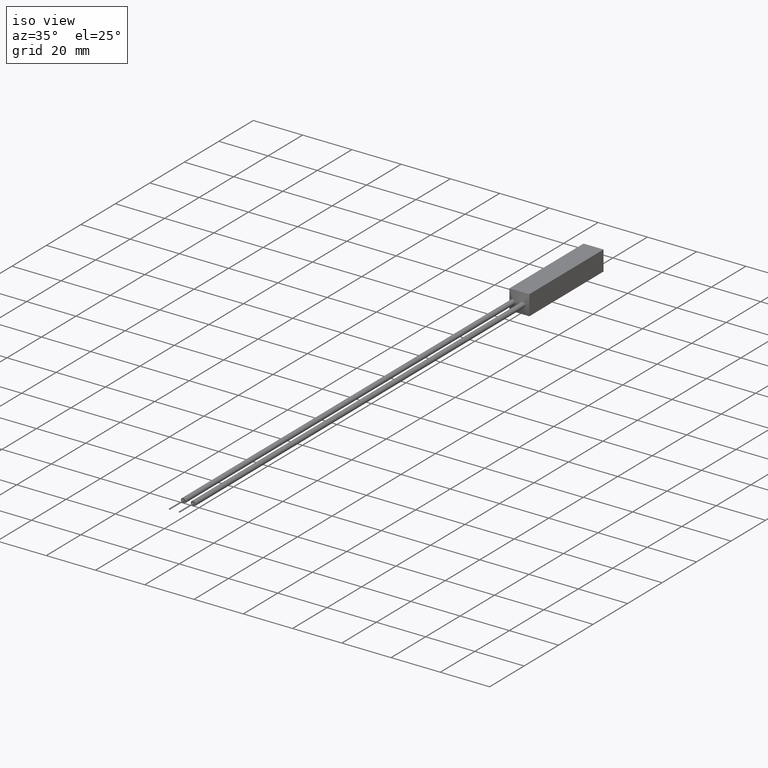
[diagram: clean part render]
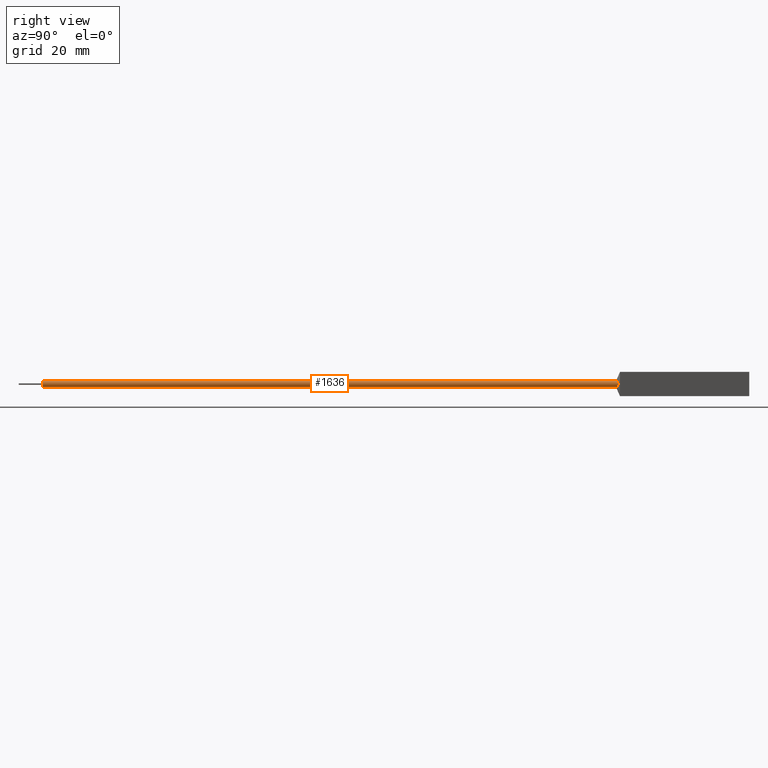
[diagram: tour spotlight — one face highlighted and labeled with its STEP entity id]
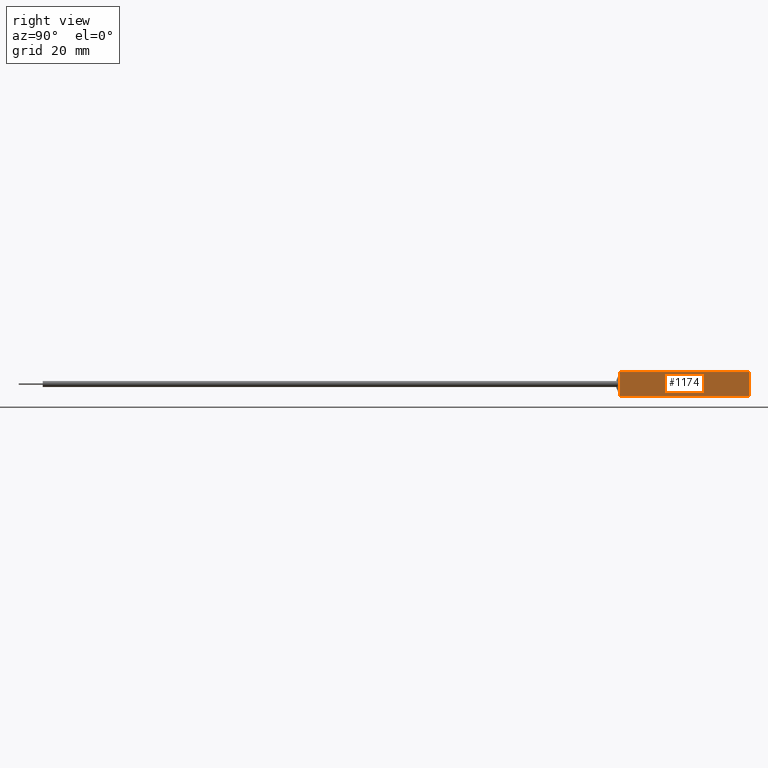
[diagram: tour spotlight — one face highlighted and labeled with its STEP entity id]
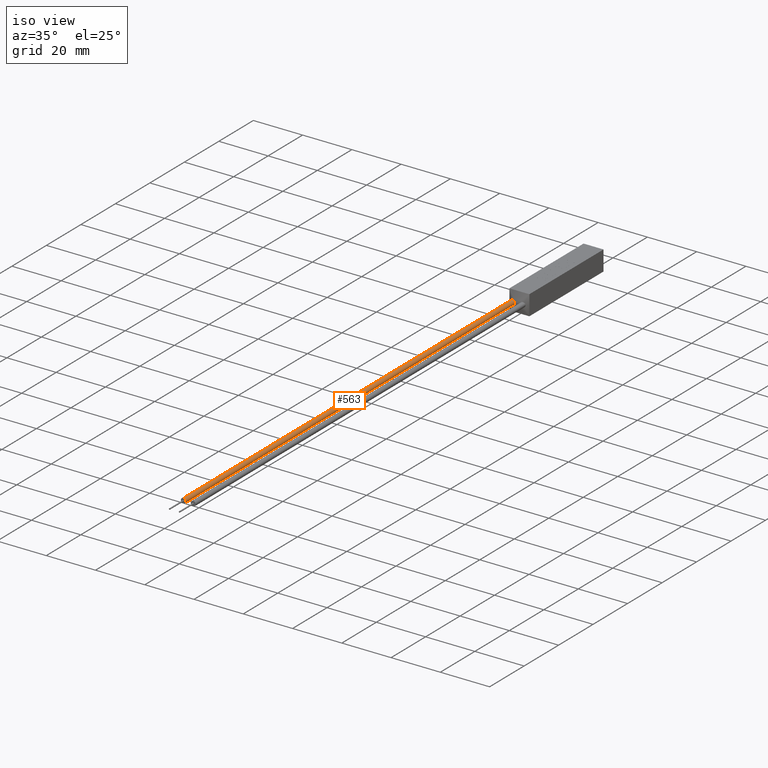
[diagram: tour spotlight — one face highlighted and labeled with its STEP entity id]
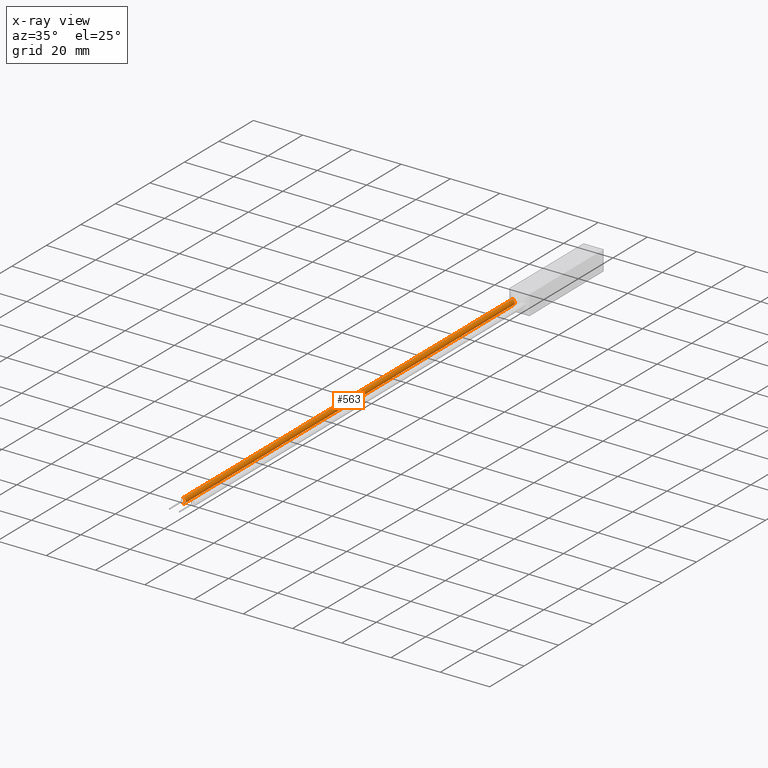
[diagram: x-ray of the same camera — body ghosted, this tour face saturated]
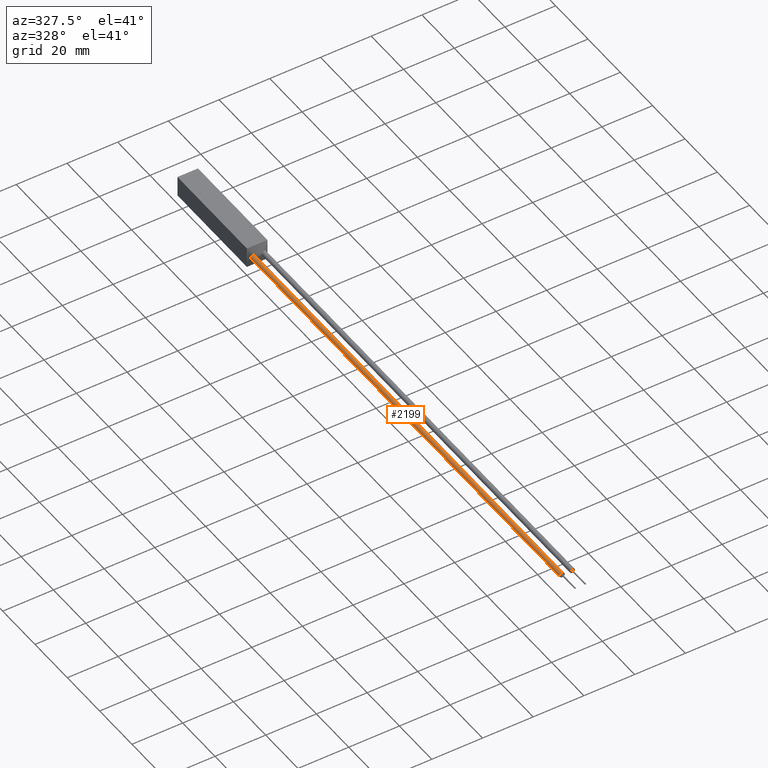
[diagram: tour spotlight — one face highlighted and labeled with its STEP entity id]
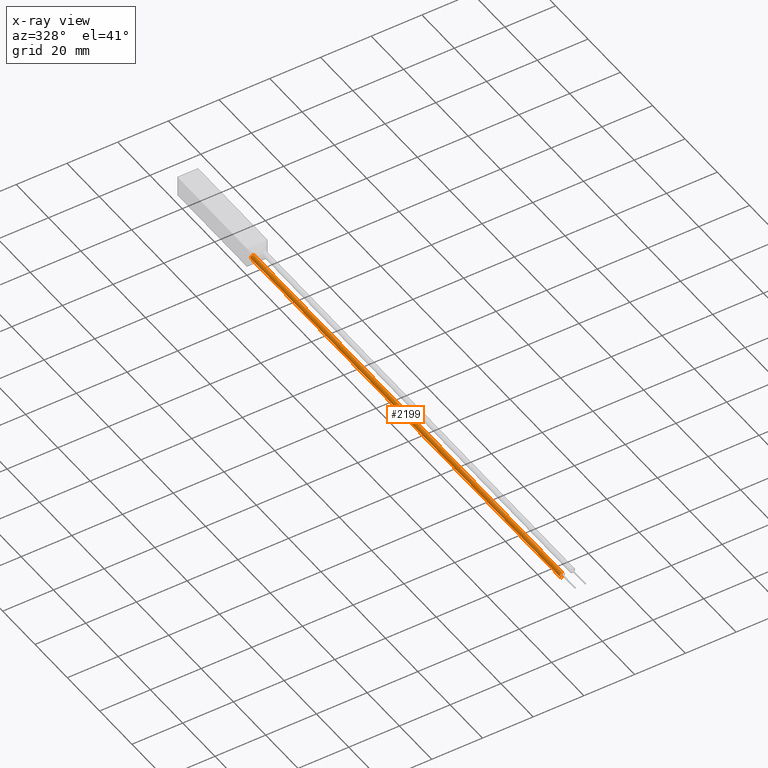
[diagram: x-ray of the same camera — body ghosted, this tour face saturated]
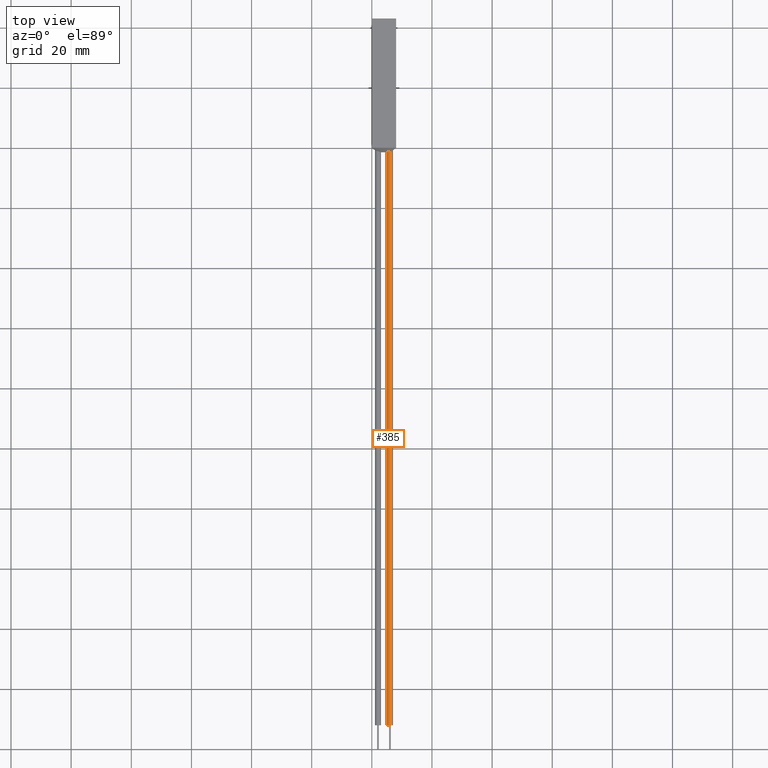
[diagram: tour spotlight — one face highlighted and labeled with its STEP entity id]
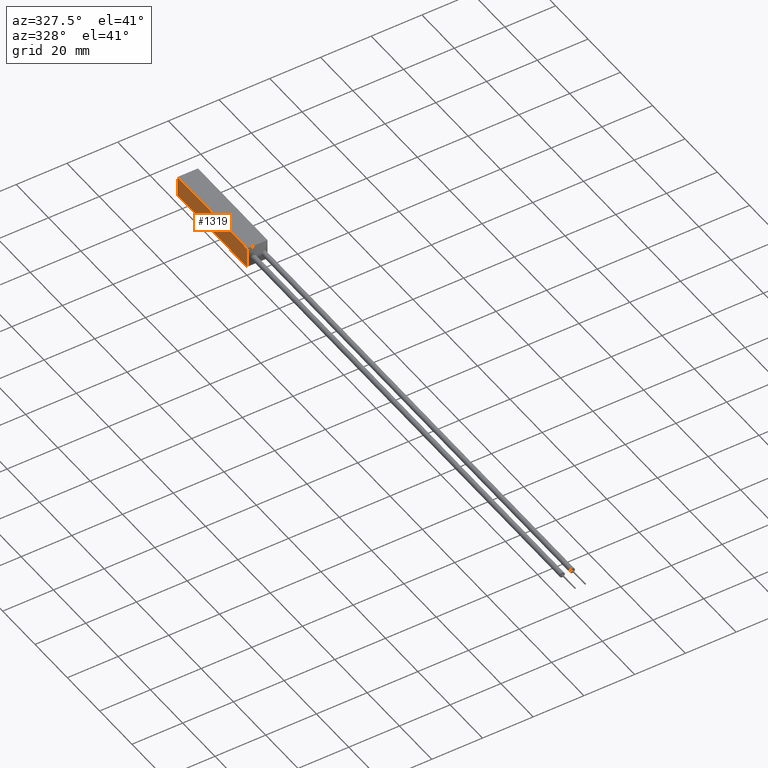
[diagram: tour spotlight — one face highlighted and labeled with its STEP entity id]
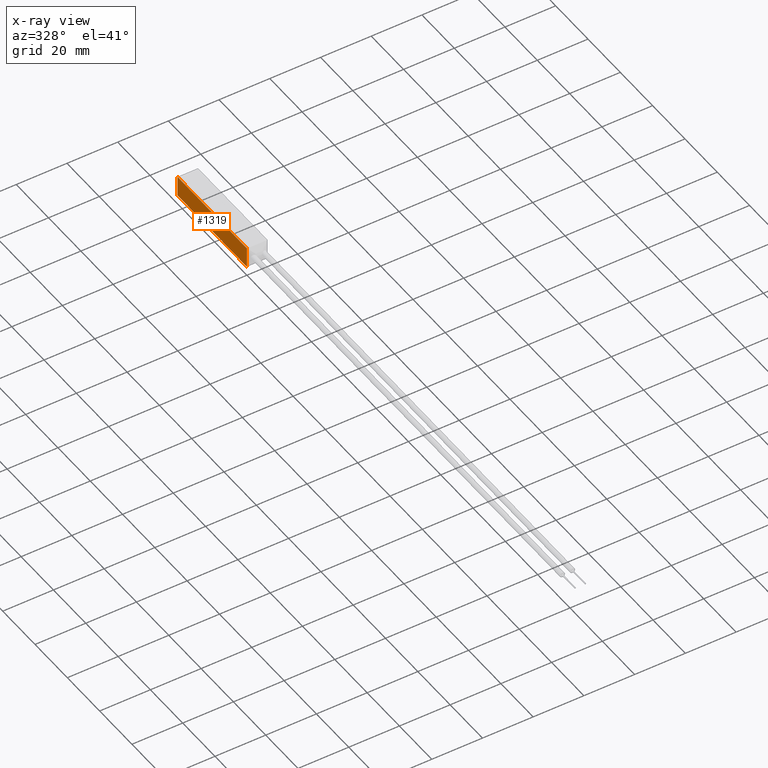
[diagram: x-ray of the same camera — body ghosted, this tour face saturated]
A machine part: a face-by-face anatomy tour. The part has 72 B-rep faces; the first image is the clean iso view, then the 6 largest visible faces are spotlighted one at a time (largest first), each with its STEP entity span.

Face 1 — right view, entity #1636. In plain terms, the highlighted cylindrical surface (edge-blend (fillet) strip) has radius 1 mm, axis along (0, 1, 0).
Definition (entity closure, byte-faithful):
#30 = CARTESIAN_POINT ( 'NONE',  ( 6.050000000000000700, -192.0000000000000000, 5.049999999999999800 ) ) ;
#33 = CARTESIAN_POINT ( 'NONE',  ( 6.050000000000000700, -192.0000000000000000, 3.049999999999999800 ) ) ;
#39 = LINE ( 'NONE', #1361, #2085 ) ;
#101 = CARTESIAN_POINT ( 'NONE',  ( 7.049782589688057000, -0.6770560791256917700, 4.186461195971296500 ) ) ;
#291 = CARTESIAN_POINT ( 'NONE',  ( 6.841326999528730500, -0.7702589457902280200, 3.424726608322665700 ) ) ;
#301 = VERTEX_POINT ( 'NONE', #1633 ) ;
#312 = CARTESIAN_POINT ( 'NONE',  ( 6.050000000000001600, -1.065053979372785800, 5.049999999999998900 ) ) ;
#316 = DIRECTION ( 'NONE',  ( 0.0000000000000000000, 0.0000000000000000000, 1.000000000000000000 ) ) ;
#323 = VECTOR ( 'NONE', #420, 1000.000000000000000 ) ;
#397 = EDGE_CURVE ( 'NONE', #301, #1147, #1093, .T. ) ;
#420 = DIRECTION ( 'NONE',  ( 0.0000000000000000000, 1.000000000000000000, 0.0000000000000000000 ) ) ;
#478 = LINE ( 'NONE', #30, #323 ) ;
#504 = CARTESIAN_POINT ( 'NONE',  ( 6.050000000000000700, -192.0000000000000000, 4.049999999999999800 ) ) ;
#508 = CARTESIAN_POINT ( 'NONE',  ( 6.917570883144287000, -0.7370218707046806200, 3.535058087261215000 ) ) ;
#509 = AXIS2_PLACEMENT_3D ( 'NONE', #2258, #870, #906 ) ;
#668 = EDGE_LOOP ( 'NONE', ( #910, #725, #922, #1110 ) ) ;
#669 = VERTEX_POINT ( 'NONE', #1419 ) ;
#707 = CARTESIAN_POINT ( 'NONE',  ( 6.840157868382039700, -0.7707441501522263000, 4.676572079334665200 ) ) ;
#725 = ORIENTED_EDGE ( 'NONE', *, *, #1757, .T. ) ;
#747 = EDGE_CURVE ( 'NONE', #669, #301, #478, .T. ) ;
#836 = AXIS2_PLACEMENT_3D ( 'NONE', #504, #2111, #316 ) ;
#870 = DIRECTION ( 'NONE',  ( 0.0000000000000000000, 1.000000000000000000, 0.0000000000000000000 ) ) ;
#906 = DIRECTION ( 'NONE',  ( 0.0000000000000000000, 0.0000000000000000000, 1.000000000000000000 ) ) ;
#910 = ORIENTED_EDGE ( 'NONE', *, *, #944, .T. ) ;
#922 = ORIENTED_EDGE ( 'NONE', *, *, #397, .F. ) ;
#944 = EDGE_CURVE ( 'NONE', #669, #2169, #2333, .T. ) ;
#1064 = CYLINDRICAL_SURFACE ( 'NONE', #509, 1.000000000000000000 ) ;
#1077 = CARTESIAN_POINT ( 'NONE',  ( 6.305326782835059000, -0.9764772968358933500, 5.025403556639865600 ) ) ;
#1093 = B_SPLINE_CURVE_WITH_KNOTS ( 'NONE', 3,
 ( #312, #1308, #1077, #1473, #2268, #707, #2294, #2468, #101, #1480, #2091, #508, #291, #1871, #1105, #2276, #1097, #2485 ),
 .UNSPECIFIED., .F., .F.,
 ( 4, 2, 2, 2, 2, 2, 2, 2, 4 ),
 ( 0.0000000000000000000, 0.0004042052628111356300, 0.0008084105256222712600, 0.001212615788433406900, 0.001616821051244542500, 0.002021026314055678200, 0.002425231576866813800, 0.002829436839677949400, 0.003233642102489085000 ),
 .UNSPECIFIED. ) ;
#1097 = CARTESIAN_POINT ( 'NONE',  ( 6.177735831026676100, -1.021177162555706500, 3.050000000000000700 ) ) ;
#1105 = CARTESIAN_POINT ( 'NONE',  ( 6.543797944979557400, -0.8890515064474700000, 3.171011300730333100 ) ) ;
#1110 = ORIENTED_EDGE ( 'NONE', *, *, #747, .F. ) ;
#1147 = VERTEX_POINT ( 'NONE', #2388 ) ;
#1308 = CARTESIAN_POINT ( 'NONE',  ( 6.179254083786952700, -1.020655647975897900, 5.049999999999999800 ) ) ;
#1361 = CARTESIAN_POINT ( 'NONE',  ( 6.050000000000000700, -192.0000000000000000, 3.049999999999999800 ) ) ;
#1419 = CARTESIAN_POINT ( 'NONE',  ( 6.050000000000000700, -192.0000000000000000, 5.049999999999999800 ) ) ;
#1473 = CARTESIAN_POINT ( 'NONE',  ( 6.544254013090356800, -0.8888851433313323900, 4.928815586390385300 ) ) ;
#1480 = CARTESIAN_POINT ( 'NONE',  ( 7.050214841948257300, -0.6768545831474318500, 3.916744026041242100 ) ) ;
#1633 = CARTESIAN_POINT ( 'NONE',  ( 6.050000000000001600, -1.065053979372785800, 5.049999999999998900 ) ) ;
#1636 = ADVANCED_FACE ( 'NONE', ( #1860 ), #1064, .T. ) ;
#1757 = EDGE_CURVE ( 'NONE', #2169, #1147, #39, .T. ) ;
#1860 = FACE_OUTER_BOUND ( 'NONE', #668, .T. ) ;
#1871 = CARTESIAN_POINT ( 'NONE',  ( 6.653541908507581800, -0.8466754272493877100, 3.241976238469532300 ) ) ;
#1923 = DIRECTION ( 'NONE',  ( 0.0000000000000000000, 1.000000000000000000, 0.0000000000000000000 ) ) ;
#2085 = VECTOR ( 'NONE', #1923, 1000.000000000000000 ) ;
#2091 = CARTESIAN_POINT ( 'NONE',  ( 7.022314162250524700, -0.6900703251390806200, 3.780835402287200600 ) ) ;
#2111 = DIRECTION ( 'NONE',  ( 0.0000000000000000000, 1.000000000000000000, 0.0000000000000000000 ) ) ;
#2169 = VERTEX_POINT ( 'NONE', #33 ) ;
#2258 = CARTESIAN_POINT ( 'NONE',  ( 6.050000000000000700, -192.0000000000000000, 4.049999999999999800 ) ) ;
#2268 = CARTESIAN_POINT ( 'NONE',  ( 6.653436377551267700, -0.8467088638716882000, 4.857964458262625100 ) ) ;
#2276 = CARTESIAN_POINT ( 'NONE',  ( 6.305933629804219900, -0.9762556567586948600, 3.074830516758727300 ) ) ;
#2294 = CARTESIAN_POINT ( 'NONE',  ( 6.916508368777208200, -0.7374871264375227900, 4.566584119798712900 ) ) ;
#2333 = CIRCLE ( 'NONE', #836, 1.000000000000000000 ) ;
#2388 = CARTESIAN_POINT ( 'NONE',  ( 6.050000000000003400, -1.065053979372784200, 3.050000000000000700 ) ) ;
#2468 = CARTESIAN_POINT ( 'NONE',  ( 7.021422709933898600, -0.6904807384991236100, 4.322091573948600100 ) ) ;
#2485 = CARTESIAN_POINT ( 'NONE',  ( 6.050000000000003400, -1.065053979372784200, 3.050000000000000700 ) ) ;

Face 2 — right view, entity #1174. In plain terms, the highlighted planar face has unit normal (-1, 0, 0).
Definition (entity closure, byte-faithful):
#26 = PLANE ( 'NONE',  #1062 ) ;
#152 = ORIENTED_EDGE ( 'NONE', *, *, #2498, .T. ) ;
#162 = DIRECTION ( 'NONE',  ( -0.0000000000000000000, -0.0000000000000000000, -1.000000000000000000 ) ) ;
#228 = CARTESIAN_POINT ( 'NONE',  ( 8.099999999999999600, 43.00000000000000000, 8.099999999999999600 ) ) ;
#404 = CARTESIAN_POINT ( 'NONE',  ( 8.099999999999999600, 43.00000000000000000, 8.099999999999999600 ) ) ;
#409 = DIRECTION ( 'NONE',  ( -1.000000000000000000, 0.0000000000000000000, 0.0000000000000000000 ) ) ;
#472 = LINE ( 'NONE', #228, #2492 ) ;
#536 = EDGE_CURVE ( 'NONE', #1336, #2442, #2497, .T. ) ;
#611 = DIRECTION ( 'NONE',  ( 0.0000000000000000000, 1.000000000000000000, 0.0000000000000000000 ) ) ;
#745 = CARTESIAN_POINT ( 'NONE',  ( 8.099999999999999600, 0.0000000000000000000, 8.099999999999999600 ) ) ;
#790 = CARTESIAN_POINT ( 'NONE',  ( 8.099999999999999600, 43.00000000000000000, 0.0000000000000000000 ) ) ;
#1062 = AXIS2_PLACEMENT_3D ( 'NONE', #1817, #409, #2212 ) ;
#1131 = FACE_OUTER_BOUND ( 'NONE', #1872, .T. ) ;
#1142 = EDGE_CURVE ( 'NONE', #2442, #2501, #472, .T. ) ;
#1174 = ADVANCED_FACE ( 'NONE', ( #1131 ), #26, .F. ) ;
#1333 = DIRECTION ( 'NONE',  ( 0.0000000000000000000, 1.000000000000000000, 0.0000000000000000000 ) ) ;
#1336 = VERTEX_POINT ( 'NONE', #1484 ) ;
#1340 = CARTESIAN_POINT ( 'NONE',  ( 8.099999999999999600, 0.0000000000000000000, 8.099999999999999600 ) ) ;
#1484 = CARTESIAN_POINT ( 'NONE',  ( 8.099999999999999600, 0.0000000000000000000, 8.099999999999999600 ) ) ;
#1493 = CARTESIAN_POINT ( 'NONE',  ( 8.099999999999999600, 0.0000000000000000000, 0.0000000000000000000 ) ) ;
#1599 = ORIENTED_EDGE ( 'NONE', *, *, #1827, .T. ) ;
#1666 = VERTEX_POINT ( 'NONE', #1493 ) ;
#1791 = CARTESIAN_POINT ( 'NONE',  ( 8.099999999999999600, 0.0000000000000000000, 0.0000000000000000000 ) ) ;
#1817 = CARTESIAN_POINT ( 'NONE',  ( 8.099999999999999600, 0.0000000000000000000, 8.099999999999999600 ) ) ;
#1827 = EDGE_CURVE ( 'NONE', #1336, #1666, #1857, .T. ) ;
#1836 = VECTOR ( 'NONE', #1333, 1000.000000000000000 ) ;
#1857 = LINE ( 'NONE', #1340, #1946 ) ;
#1872 = EDGE_LOOP ( 'NONE', ( #152, #2544, #2413, #1599 ) ) ;
#1946 = VECTOR ( 'NONE', #162, 1000.000000000000000 ) ;
#2008 = DIRECTION ( 'NONE',  ( -0.0000000000000000000, -0.0000000000000000000, -1.000000000000000000 ) ) ;
#2212 = DIRECTION ( 'NONE',  ( 0.0000000000000000000, 0.0000000000000000000, 1.000000000000000000 ) ) ;
#2413 = ORIENTED_EDGE ( 'NONE', *, *, #536, .F. ) ;
#2442 = VERTEX_POINT ( 'NONE', #404 ) ;
#2477 = VECTOR ( 'NONE', #611, 1000.000000000000000 ) ;
#2492 = VECTOR ( 'NONE', #2008, 1000.000000000000000 ) ;
#2497 = LINE ( 'NONE', #745, #1836 ) ;
#2498 = EDGE_CURVE ( 'NONE', #1666, #2501, #2541, .T. ) ;
#2501 = VERTEX_POINT ( 'NONE', #790 ) ;
#2541 = LINE ( 'NONE', #1791, #2477 ) ;
#2544 = ORIENTED_EDGE ( 'NONE', *, *, #1142, .F. ) ;

Face 3 — iso view, entity #563. An x-ray twin of the same camera follows (body ghosted, this face saturated) — the face is partly hidden behind the body. In plain terms, the highlighted cylindrical surface (edge-blend (fillet) strip) has radius 1 mm, axis along (0, 1, 0).
Definition (entity closure, byte-faithful):
#1 = CARTESIAN_POINT ( 'NONE',  ( 2.304380462756219200, -1.151667494371806800, 5.025667091620696200 ) ) ;
#193 = CARTESIAN_POINT ( 'NONE',  ( 2.653466689436920300, -1.270299211996313000, 4.858036608084524300 ) ) ;
#263 = ORIENTED_EDGE ( 'NONE', *, *, #1074, .F. ) ;
#334 = DIRECTION ( 'NONE',  ( 0.0000000000000000000, 1.000000000000000000, 0.0000000000000000000 ) ) ;
#373 = CARTESIAN_POINT ( 'NONE',  ( 2.050000000000000300, -192.0000000000000000, 5.049999999999999800 ) ) ;
#376 = CYLINDRICAL_SURFACE ( 'NONE', #1209, 1.000000000000000000 ) ;
#408 = CARTESIAN_POINT ( 'NONE',  ( 2.050000000000000300, -192.0000000000000000, 3.049999999999999800 ) ) ;
#480 = CARTESIAN_POINT ( 'NONE',  ( 2.050000000000000300, -192.0000000000000000, 3.049999999999999800 ) ) ;
#563 = ADVANCED_FACE ( 'NONE', ( #2061 ), #376, .T. ) ;
#613 = CARTESIAN_POINT ( 'NONE',  ( 2.049999999999999800, -1.065053979372785800, 5.050000000000000700 ) ) ;
#653 = LINE ( 'NONE', #480, #1317 ) ;
#680 = VERTEX_POINT ( 'NONE', #2390 ) ;
#687 = CARTESIAN_POINT ( 'NONE',  ( 2.050000000000000300, -192.0000000000000000, 5.049999999999999800 ) ) ;
#699 = ORIENTED_EDGE ( 'NONE', *, *, #1516, .T. ) ;
#773 = CARTESIAN_POINT ( 'NONE',  ( 3.049830824381978700, -1.408490528176045800, 4.185286913239761700 ) ) ;
#783 = CARTESIAN_POINT ( 'NONE',  ( 3.022634062902957100, -1.398812703780552200, 3.782075709399126000 ) ) ;
#931 = CARTESIAN_POINT ( 'NONE',  ( 2.840928581346762200, -1.334999254075950100, 4.675721331323695800 ) ) ;
#1074 = EDGE_CURVE ( 'NONE', #1873, #680, #1362, .T. ) ;
#1144 = CARTESIAN_POINT ( 'NONE',  ( 2.918371333244694600, -1.362112318841773600, 3.536451878192582200 ) ) ;
#1182 = CARTESIAN_POINT ( 'NONE',  ( 3.050167597258706100, -1.408609963732183600, 3.917225741681461800 ) ) ;
#1192 = CARTESIAN_POINT ( 'NONE',  ( 2.176964197843394900, -1.108665742856175000, 3.049999999998977100 ) ) ;
#1194 = AXIS2_PLACEMENT_3D ( 'NONE', #1705, #2488, #1687 ) ;
#1209 = AXIS2_PLACEMENT_3D ( 'NONE', #1709, #334, #2176 ) ;
#1317 = VECTOR ( 'NONE', #1674, 1000.000000000000000 ) ;
#1328 = EDGE_LOOP ( 'NONE', ( #2154, #699, #263, #2343 ) ) ;
#1347 = CARTESIAN_POINT ( 'NONE',  ( 2.917487754181418600, -1.361802718651389900, 4.564914758102677400 ) ) ;
#1362 = B_SPLINE_CURVE_WITH_KNOTS ( 'NONE', 3,
 ( #2125, #1397, #1, #2369, #193, #931, #1347, #1767, #773, #1182, #783, #1144, #1526, #1960, #1563, #1712, #1192, #2175 ),
 .UNSPECIFIED., .F., .F.,
 ( 4, 2, 2, 2, 2, 2, 2, 2, 4 ),
 ( 0.0000000000000000000, 0.0004017613566068381800, 0.0008035227132136763600, 0.001205284069820514400, 0.001607045426427352700, 0.002008806783034191000, 0.002410568139641028900, 0.002812329496247867100, 0.003214090852854705400 ),
 .UNSPECIFIED. ) ;
#1385 = EDGE_CURVE ( 'NONE', #1501, #1996, #2387, .T. ) ;
#1397 = CARTESIAN_POINT ( 'NONE',  ( 2.178448052580201900, -1.109175441833815100, 5.050000000000000700 ) ) ;
#1501 = VERTEX_POINT ( 'NONE', #687 ) ;
#1516 = EDGE_CURVE ( 'NONE', #1996, #680, #653, .T. ) ;
#1520 = LINE ( 'NONE', #373, #2264 ) ;
#1526 = CARTESIAN_POINT ( 'NONE',  ( 2.842290806471596400, -1.335471053464873500, 3.425767083992763000 ) ) ;
#1563 = CARTESIAN_POINT ( 'NONE',  ( 2.543254443862930500, -1.232688117949571000, 3.170669554978995800 ) ) ;
#1674 = DIRECTION ( 'NONE',  ( 0.0000000000000000000, 1.000000000000000000, 0.0000000000000000000 ) ) ;
#1687 = DIRECTION ( 'NONE',  ( 0.0000000000000000000, 0.0000000000000000000, 1.000000000000000000 ) ) ;
#1705 = CARTESIAN_POINT ( 'NONE',  ( 2.050000000000000300, -192.0000000000000000, 4.049999999999999800 ) ) ;
#1709 = CARTESIAN_POINT ( 'NONE',  ( 2.050000000000000300, -192.0000000000000000, 4.049999999999999800 ) ) ;
#1712 = CARTESIAN_POINT ( 'NONE',  ( 2.304839961431525800, -1.151823304834251000, 3.074511111293960900 ) ) ;
#1767 = CARTESIAN_POINT ( 'NONE',  ( 3.021884295715220800, -1.398547389619987100, 4.320394392524678800 ) ) ;
#1873 = VERTEX_POINT ( 'NONE', #613 ) ;
#1876 = EDGE_CURVE ( 'NONE', #1501, #1873, #1520, .T. ) ;
#1960 = CARTESIAN_POINT ( 'NONE',  ( 2.653374639562326600, -1.270265808152436300, 3.241711375943381300 ) ) ;
#1996 = VERTEX_POINT ( 'NONE', #408 ) ;
#2061 = FACE_OUTER_BOUND ( 'NONE', #1328, .T. ) ;
#2125 = CARTESIAN_POINT ( 'NONE',  ( 2.049999999999999800, -1.065053979372785800, 5.050000000000000700 ) ) ;
#2154 = ORIENTED_EDGE ( 'NONE', *, *, #1385, .T. ) ;
#2165 = DIRECTION ( 'NONE',  ( 0.0000000000000000000, 1.000000000000000000, 0.0000000000000000000 ) ) ;
#2175 = CARTESIAN_POINT ( 'NONE',  ( 2.050000000000000700, -1.065053979372784500, 3.049999999999998900 ) ) ;
#2176 = DIRECTION ( 'NONE',  ( 0.0000000000000000000, 0.0000000000000000000, 1.000000000000000000 ) ) ;
#2264 = VECTOR ( 'NONE', #2165, 1000.000000000000000 ) ;
#2343 = ORIENTED_EDGE ( 'NONE', *, *, #1876, .F. ) ;
#2369 = CARTESIAN_POINT ( 'NONE',  ( 2.543618945614628800, -1.232811707615278500, 4.929190553881212200 ) ) ;
#2387 = CIRCLE ( 'NONE', #1194, 1.000000000000000000 ) ;
#2390 = CARTESIAN_POINT ( 'NONE',  ( 2.050000000000000700, -1.065053979372784500, 3.049999999999998900 ) ) ;
#2488 = DIRECTION ( 'NONE',  ( 0.0000000000000000000, 1.000000000000000000, 0.0000000000000000000 ) ) ;

Face 4 — auxiliary view, entity #2199. An x-ray twin of the same camera follows (body ghosted, this face saturated) — the face is partly hidden behind the body. In plain terms, the highlighted cylindrical surface (edge-blend (fillet) strip) has radius 1 mm, axis along (0, 1, 0).
Definition (entity closure, byte-faithful):
#3 = CIRCLE ( 'NONE', #434, 1.000000000000000000 ) ;
#6 = DIRECTION ( 'NONE',  ( 0.0000000000000000000, 1.000000000000000000, 0.0000000000000000000 ) ) ;
#114 = CARTESIAN_POINT ( 'NONE',  ( 1.446449010304296000, -0.8466546042133910000, 3.242276720773206800 ) ) ;
#325 = CARTESIAN_POINT ( 'NONE',  ( 1.791626942723811400, -0.9763037264996662400, 5.050000000000001600 ) ) ;
#326 = EDGE_LOOP ( 'NONE', ( #361, #704, #2285, #1780 ) ) ;
#361 = ORIENTED_EDGE ( 'NONE', *, *, #1516, .F. ) ;
#373 = CARTESIAN_POINT ( 'NONE',  ( 2.050000000000000300, -192.0000000000000000, 5.049999999999999800 ) ) ;
#408 = CARTESIAN_POINT ( 'NONE',  ( 2.050000000000000300, -192.0000000000000000, 3.049999999999999800 ) ) ;
#434 = AXIS2_PLACEMENT_3D ( 'NONE', #975, #6, #799 ) ;
#475 = DIRECTION ( 'NONE',  ( 0.0000000000000000000, 0.0000000000000000000, 1.000000000000000000 ) ) ;
#480 = CARTESIAN_POINT ( 'NONE',  ( 2.050000000000000300, -192.0000000000000000, 3.049999999999999800 ) ) ;
#501 = DIRECTION ( 'NONE',  ( 0.0000000000000000000, 1.000000000000000000, 0.0000000000000000000 ) ) ;
#505 = CARTESIAN_POINT ( 'NONE',  ( 1.079068340084090400, -0.6907053670061943400, 3.776411758766176100 ) ) ;
#512 = B_SPLINE_CURVE_WITH_KNOTS ( 'NONE', 3,
 ( #1123, #1714, #1321, #2107, #114, #2491, #727, #505, #1485, #2301, #1908, #2502, #705, #1510, #325, #1707 ),
 .UNSPECIFIED., .F., .F.,
 ( 4, 2, 2, 2, 2, 2, 2, 4 ),
 ( 0.003214090852854705400, 0.003618162023716260100, 0.004022233194577814900, 0.004426304365439369600, 0.004830375536300924300, 0.005234446707162479900, 0.005638517878024034600, 0.006446660219747144900 ),
 .UNSPECIFIED. ) ;
#613 = CARTESIAN_POINT ( 'NONE',  ( 2.049999999999999800, -1.065053979372785800, 5.050000000000000700 ) ) ;
#653 = LINE ( 'NONE', #480, #1317 ) ;
#680 = VERTEX_POINT ( 'NONE', #2390 ) ;
#687 = CARTESIAN_POINT ( 'NONE',  ( 2.050000000000000300, -192.0000000000000000, 5.049999999999999800 ) ) ;
#704 = ORIENTED_EDGE ( 'NONE', *, *, #2480, .T. ) ;
#705 = CARTESIAN_POINT ( 'NONE',  ( 1.259060291447539300, -0.7704083470153955100, 4.675510333601633500 ) ) ;
#727 = CARTESIAN_POINT ( 'NONE',  ( 1.183831812407178900, -0.7376348904745085900, 3.532978255031136600 ) ) ;
#799 = DIRECTION ( 'NONE',  ( 0.0000000000000000000, 0.0000000000000000000, 1.000000000000000000 ) ) ;
#923 = CYLINDRICAL_SURFACE ( 'NONE', #1286, 1.000000000000000000 ) ;
#975 = CARTESIAN_POINT ( 'NONE',  ( 2.050000000000000300, -192.0000000000000000, 4.049999999999999800 ) ) ;
#1123 = CARTESIAN_POINT ( 'NONE',  ( 2.050000000000000700, -1.065053979372784500, 3.049999999999998900 ) ) ;
#1286 = AXIS2_PLACEMENT_3D ( 'NONE', #2443, #501, #475 ) ;
#1317 = VECTOR ( 'NONE', #1674, 1000.000000000000000 ) ;
#1321 = CARTESIAN_POINT ( 'NONE',  ( 1.793835400693553100, -0.9761665941209098900, 3.074983099888771900 ) ) ;
#1485 = CARTESIAN_POINT ( 'NONE',  ( 1.050364748439659200, -0.6771247611419404200, 3.911949844799506700 ) ) ;
#1501 = VERTEX_POINT ( 'NONE', #687 ) ;
#1510 = CARTESIAN_POINT ( 'NONE',  ( 1.537920208959116400, -0.8839109696062009700, 4.947312369042371000 ) ) ;
#1516 = EDGE_CURVE ( 'NONE', #1996, #680, #653, .T. ) ;
#1520 = LINE ( 'NONE', #373, #2264 ) ;
#1674 = DIRECTION ( 'NONE',  ( 0.0000000000000000000, 1.000000000000000000, 0.0000000000000000000 ) ) ;
#1707 = CARTESIAN_POINT ( 'NONE',  ( 2.049999999999999800, -1.065053979372785800, 5.050000000000000700 ) ) ;
#1714 = CARTESIAN_POINT ( 'NONE',  ( 1.922305857104944900, -1.021191482284858200, 3.049999999999035700 ) ) ;
#1727 = EDGE_CURVE ( 'NONE', #680, #1873, #512, .T. ) ;
#1780 = ORIENTED_EDGE ( 'NONE', *, *, #1727, .F. ) ;
#1873 = VERTEX_POINT ( 'NONE', #613 ) ;
#1876 = EDGE_CURVE ( 'NONE', #1501, #1873, #1520, .T. ) ;
#1908 = CARTESIAN_POINT ( 'NONE',  ( 1.077322836830126400, -0.6899061511918048700, 4.318199240141405300 ) ) ;
#1996 = VERTEX_POINT ( 'NONE', #408 ) ;
#2107 = CARTESIAN_POINT ( 'NONE',  ( 1.557229215953919400, -0.8894324484779119200, 3.170536975290630700 ) ) ;
#2165 = DIRECTION ( 'NONE',  ( 0.0000000000000000000, 1.000000000000000000, 0.0000000000000000000 ) ) ;
#2199 = ADVANCED_FACE ( 'NONE', ( #2511 ), #923, .T. ) ;
#2264 = VECTOR ( 'NONE', #2165, 1000.000000000000000 ) ;
#2285 = ORIENTED_EDGE ( 'NONE', *, *, #1876, .T. ) ;
#2301 = CARTESIAN_POINT ( 'NONE',  ( 1.049642369341542000, -0.6767880218576599600, 4.182714325889794100 ) ) ;
#2390 = CARTESIAN_POINT ( 'NONE',  ( 2.050000000000000700, -1.065053979372784500, 3.049999999999998900 ) ) ;
#2443 = CARTESIAN_POINT ( 'NONE',  ( 2.050000000000000300, -192.0000000000000000, 4.049999999999999800 ) ) ;
#2480 = EDGE_CURVE ( 'NONE', #1996, #1501, #3, .T. ) ;
#2491 = CARTESIAN_POINT ( 'NONE',  ( 1.260988323523821500, -0.7712180495418655700, 3.422185324039173500 ) ) ;
#2502 = CARTESIAN_POINT ( 'NONE',  ( 1.182532508050317300, -0.7370696700821081100, 4.565297823181068400 ) ) ;
#2511 = FACE_OUTER_BOUND ( 'NONE', #326, .T. ) ;

Face 5 — top view, entity #385. In plain terms, the highlighted cylindrical surface (edge-blend (fillet) strip) has radius 1 mm, axis along (0, 1, 0).
Definition (entity closure, byte-faithful):
#30 = CARTESIAN_POINT ( 'NONE',  ( 6.050000000000000700, -192.0000000000000000, 5.049999999999999800 ) ) ;
#33 = CARTESIAN_POINT ( 'NONE',  ( 6.050000000000000700, -192.0000000000000000, 3.049999999999999800 ) ) ;
#39 = LINE ( 'NONE', #1361, #2085 ) ;
#45 = AXIS2_PLACEMENT_3D ( 'NONE', #1675, #674, #873 ) ;
#95 = CARTESIAN_POINT ( 'NONE',  ( 5.181792538761646600, -1.362054366556528800, 4.564071134538381500 ) ) ;
#212 = EDGE_LOOP ( 'NONE', ( #337, #1604, #786, #784 ) ) ;
#301 = VERTEX_POINT ( 'NONE', #1633 ) ;
#323 = VECTOR ( 'NONE', #420, 1000.000000000000000 ) ;
#337 = ORIENTED_EDGE ( 'NONE', *, *, #1757, .F. ) ;
#385 = ADVANCED_FACE ( 'NONE', ( #2305 ), #1472, .T. ) ;
#420 = DIRECTION ( 'NONE',  ( 0.0000000000000000000, 1.000000000000000000, 0.0000000000000000000 ) ) ;
#478 = LINE ( 'NONE', #30, #323 ) ;
#486 = CARTESIAN_POINT ( 'NONE',  ( 5.182957464257648400, -1.361646770233892800, 3.534419211565211300 ) ) ;
#522 = DIRECTION ( 'NONE',  ( 0.0000000000000000000, 1.000000000000000000, 0.0000000000000000000 ) ) ;
#669 = VERTEX_POINT ( 'NONE', #1419 ) ;
#674 = DIRECTION ( 'NONE',  ( 0.0000000000000000000, 1.000000000000000000, 0.0000000000000000000 ) ) ;
#682 = CARTESIAN_POINT ( 'NONE',  ( 5.078544044712999500, -1.398395875979245400, 3.778228708052186600 ) ) ;
#747 = EDGE_CURVE ( 'NONE', #669, #301, #478, .T. ) ;
#784 = ORIENTED_EDGE ( 'NONE', *, *, #2250, .F. ) ;
#786 = ORIENTED_EDGE ( 'NONE', *, *, #747, .T. ) ;
#868 = CARTESIAN_POINT ( 'NONE',  ( 5.557957859521060600, -1.232276511611003900, 3.170107603495084800 ) ) ;
#873 = DIRECTION ( 'NONE',  ( 0.0000000000000000000, 0.0000000000000000000, 1.000000000000000000 ) ) ;
#885 = CARTESIAN_POINT ( 'NONE',  ( 6.050000000000001600, -1.065053979372785800, 5.049999999999998900 ) ) ;
#1072 = CARTESIAN_POINT ( 'NONE',  ( 5.794932961494231100, -1.151900746391208100, 3.074676000858095100 ) ) ;
#1102 = CARTESIAN_POINT ( 'NONE',  ( 6.050000000000000700, -192.0000000000000000, 4.049999999999999800 ) ) ;
#1147 = VERTEX_POINT ( 'NONE', #2388 ) ;
#1290 = CARTESIAN_POINT ( 'NONE',  ( 5.076890495750490100, -1.398980328988563800, 4.316666870561002500 ) ) ;
#1358 = EDGE_CURVE ( 'NONE', #2169, #669, #1646, .T. ) ;
#1361 = CARTESIAN_POINT ( 'NONE',  ( 6.050000000000000700, -192.0000000000000000, 3.049999999999999800 ) ) ;
#1419 = CARTESIAN_POINT ( 'NONE',  ( 6.050000000000000700, -192.0000000000000000, 5.049999999999999800 ) ) ;
#1459 = CARTESIAN_POINT ( 'NONE',  ( 6.050000000000003400, -1.065053979372784200, 3.050000000000000700 ) ) ;
#1472 = CYLINDRICAL_SURFACE ( 'NONE', #45, 1.000000000000000000 ) ;
#1475 = CARTESIAN_POINT ( 'NONE',  ( 5.258271462635902600, -1.335278183070488500, 4.674661289197358000 ) ) ;
#1490 = CARTESIAN_POINT ( 'NONE',  ( 5.049691867000616300, -1.408659804318999700, 4.182351397325998500 ) ) ;
#1604 = ORIENTED_EDGE ( 'NONE', *, *, #1358, .T. ) ;
#1620 = B_SPLINE_CURVE_WITH_KNOTS ( 'NONE', 3,
 ( #1459, #1677, #1072, #868, #2055, #1858, #486, #682, #2459, #1490, #1290, #95, #1475, #1885, #1874, #885 ),
 .UNSPECIFIED., .F., .F.,
 ( 4, 2, 2, 2, 2, 2, 2, 4 ),
 ( 0.003233642102489085000, 0.003635049274594075300, 0.004036456446699065700, 0.004437863618804056800, 0.004839270790909047100, 0.005240677963014034800, 0.005642085135119023400, 0.006444899479328994500 ),
 .UNSPECIFIED. ) ;
#1633 = CARTESIAN_POINT ( 'NONE',  ( 6.050000000000001600, -1.065053979372785800, 5.049999999999998900 ) ) ;
#1646 = CIRCLE ( 'NONE', #1984, 1.000000000000000000 ) ;
#1675 = CARTESIAN_POINT ( 'NONE',  ( 6.050000000000000700, -192.0000000000000000, 4.049999999999999800 ) ) ;
#1677 = CARTESIAN_POINT ( 'NONE',  ( 5.923148413871953000, -1.108627061120956100, 3.049999999999999800 ) ) ;
#1757 = EDGE_CURVE ( 'NONE', #2169, #1147, #39, .T. ) ;
#1858 = CARTESIAN_POINT ( 'NONE',  ( 5.260244664132916800, -1.334592786031911300, 3.422984977239072800 ) ) ;
#1874 = CARTESIAN_POINT ( 'NONE',  ( 5.793281342280872400, -1.153235951711587300, 5.049999999999998000 ) ) ;
#1885 = CARTESIAN_POINT ( 'NONE',  ( 5.538554571975328900, -1.238533647223783600, 4.948090633813655400 ) ) ;
#1915 = DIRECTION ( 'NONE',  ( 0.0000000000000000000, 0.0000000000000000000, 1.000000000000000000 ) ) ;
#1923 = DIRECTION ( 'NONE',  ( 0.0000000000000000000, 1.000000000000000000, 0.0000000000000000000 ) ) ;
#1984 = AXIS2_PLACEMENT_3D ( 'NONE', #1102, #522, #1915 ) ;
#2055 = CARTESIAN_POINT ( 'NONE',  ( 5.446572855567455700, -1.270287111167274400, 3.242078586333793800 ) ) ;
#2085 = VECTOR ( 'NONE', #1923, 1000.000000000000000 ) ;
#2169 = VERTEX_POINT ( 'NONE', #33 ) ;
#2250 = EDGE_CURVE ( 'NONE', #1147, #301, #1620, .T. ) ;
#2305 = FACE_OUTER_BOUND ( 'NONE', #212, .T. ) ;
#2388 = CARTESIAN_POINT ( 'NONE',  ( 6.050000000000003400, -1.065053979372784200, 3.050000000000000700 ) ) ;
#2459 = CARTESIAN_POINT ( 'NONE',  ( 5.050313459929317800, -1.408439358169276900, 3.913032577156609500 ) ) ;

Face 6 — auxiliary view, entity #1319. An x-ray twin of the same camera follows (body ghosted, this face saturated) — the face is partly hidden behind the body. In plain terms, the highlighted planar face has unit normal (1, 0, 0).
Definition (entity closure, byte-faithful):
#11 = LINE ( 'NONE', #1306, #2051 ) ;
#160 = EDGE_CURVE ( 'NONE', #487, #757, #692, .T. ) ;
#168 = VECTOR ( 'NONE', #225, 1000.000000000000000 ) ;
#225 = DIRECTION ( 'NONE',  ( -0.0000000000000000000, -1.000000000000000000, -0.0000000000000000000 ) ) ;
#344 = AXIS2_PLACEMENT_3D ( 'NONE', #1065, #1291, #1052 ) ;
#413 = CARTESIAN_POINT ( 'NONE',  ( 0.0000000000000000000, 0.0000000000000000000, 8.099999999999999600 ) ) ;
#487 = VERTEX_POINT ( 'NONE', #941 ) ;
#609 = EDGE_LOOP ( 'NONE', ( #1049, #1693, #881, #1845 ) ) ;
#692 = LINE ( 'NONE', #1774, #168 ) ;
#757 = VERTEX_POINT ( 'NONE', #1025 ) ;
#842 = PLANE ( 'NONE',  #344 ) ;
#881 = ORIENTED_EDGE ( 'NONE', *, *, #2533, .F. ) ;
#929 = EDGE_CURVE ( 'NONE', #1452, #757, #2274, .T. ) ;
#941 = CARTESIAN_POINT ( 'NONE',  ( 0.0000000000000000000, 43.00000000000000000, 0.0000000000000000000 ) ) ;
#978 = VECTOR ( 'NONE', #2216, 1000.000000000000000 ) ;
#1025 = CARTESIAN_POINT ( 'NONE',  ( 0.0000000000000000000, 0.0000000000000000000, 0.0000000000000000000 ) ) ;
#1044 = DIRECTION ( 'NONE',  ( -0.0000000000000000000, -0.0000000000000000000, -1.000000000000000000 ) ) ;
#1049 = ORIENTED_EDGE ( 'NONE', *, *, #160, .T. ) ;
#1052 = DIRECTION ( 'NONE',  ( 0.0000000000000000000, 0.0000000000000000000, -1.000000000000000000 ) ) ;
#1065 = CARTESIAN_POINT ( 'NONE',  ( 0.0000000000000000000, 0.0000000000000000000, 8.099999999999999600 ) ) ;
#1291 = DIRECTION ( 'NONE',  ( 1.000000000000000000, 0.0000000000000000000, 0.0000000000000000000 ) ) ;
#1306 = CARTESIAN_POINT ( 'NONE',  ( 0.0000000000000000000, 43.00000000000000000, 8.099999999999999600 ) ) ;
#1319 = ADVANCED_FACE ( 'NONE', ( #2489 ), #842, .F. ) ;
#1452 = VERTEX_POINT ( 'NONE', #413 ) ;
#1528 = VECTOR ( 'NONE', #1044, 1000.000000000000000 ) ;
#1663 = EDGE_CURVE ( 'NONE', #2043, #487, #11, .T. ) ;
#1693 = ORIENTED_EDGE ( 'NONE', *, *, #929, .F. ) ;
#1774 = CARTESIAN_POINT ( 'NONE',  ( 0.0000000000000000000, 0.0000000000000000000, 0.0000000000000000000 ) ) ;
#1845 = ORIENTED_EDGE ( 'NONE', *, *, #1663, .T. ) ;
#1992 = CARTESIAN_POINT ( 'NONE',  ( 0.0000000000000000000, 0.0000000000000000000, 8.099999999999999600 ) ) ;
#2009 = LINE ( 'NONE', #1992, #978 ) ;
#2043 = VERTEX_POINT ( 'NONE', #2436 ) ;
#2051 = VECTOR ( 'NONE', #2098, 1000.000000000000000 ) ;
#2068 = CARTESIAN_POINT ( 'NONE',  ( 0.0000000000000000000, 0.0000000000000000000, 8.099999999999999600 ) ) ;
#2098 = DIRECTION ( 'NONE',  ( -0.0000000000000000000, -0.0000000000000000000, -1.000000000000000000 ) ) ;
#2216 = DIRECTION ( 'NONE',  ( -0.0000000000000000000, -1.000000000000000000, -0.0000000000000000000 ) ) ;
#2274 = LINE ( 'NONE', #2068, #1528 ) ;
#2436 = CARTESIAN_POINT ( 'NONE',  ( 0.0000000000000000000, 43.00000000000000000, 8.099999999999999600 ) ) ;
#2489 = FACE_OUTER_BOUND ( 'NONE', #609, .T. ) ;
#2533 = EDGE_CURVE ( 'NONE', #2043, #1452, #2009, .T. ) ;